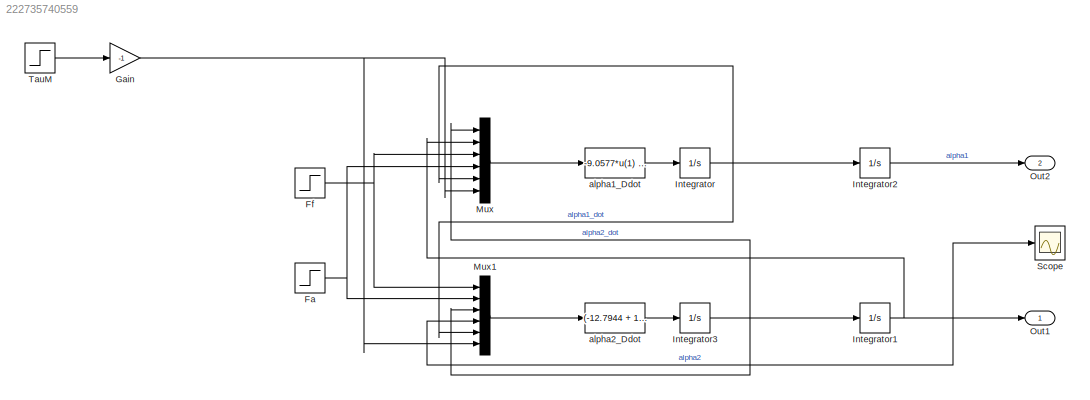
MODEL slx_222735740559
KIND model
CONFIG AbsTol = auto
CONFIG EnableMultiTasking = off
CONFIG FixedStep = auto
CONFIG MaxStep = auto
CONFIG MinStep = auto
CONFIG RelTol = 1e-3
CONFIG SampleTimeConstraint = Unconstrained
CONFIG SolverName = VariableStepAuto
CONFIG StartTime = 0.0
CONFIG StopTime = 10.0
BLOCK [Step] Fa
  SampleTime = 0.2
BLOCK [Step] Ff
  SampleTime = 0.2
BLOCK [Gain] Gain
  Gain = -1
BLOCK [Integrator] Integrator
  ContinuousStateAttributes = "alpha1_dot"
  LowerSaturationLimit = 0
  UpperSaturationLimit = pi
BLOCK [Integrator] Integrator1
  ContinuousStateAttributes = "alpha2"
BLOCK [Integrator] Integrator2
  ContinuousStateAttributes = "alpha1"
BLOCK [Integrator] Integrator3
  ContinuousStateAttributes = "alpha2_dot"
  LowerSaturationLimit = -pi/2
  UpperSaturationLimit = pi/2
BLOCK [Mux] Mux
  DisplayOption = bar
  Inputs = 6
BLOCK [Mux] Mux1
  DisplayOption = bar
  Inputs = 6
BLOCK [Outport] Out1
  SignalName = Alpha2
BLOCK [Outport] Out2
  Port = 2
  SignalName = Alpha1
BLOCK [Scope] Scope
  Floating = off
  NumInputPorts = 1
  ScopeSpecificationString = Simulink.scopes.TimeScopeBlockCfg('CurrentConfiguration', extmgr.ConfigurationSet(extmgr.Configuration('Core','General UI',true),extmgr.Configuration('Core','Source UI',true),extmgr.Configuration('Sources','WiredSimulink',true,'SampleTime','0.1'),extmgr.Configuration('Visuals','Time Domain',true,'SerializedDisplays',{struct('MinYLimReal','-50','MaxYLimReal','50','YLabelReal','','MinYLimMag','0.000...<+1828ch>
BLOCK [Step] TauM
  SampleTime = 0.2
BLOCK [Fcn] alpha1_Ddot
  Expr = -9.0577*u(1) + 9.0577*u(2)*u(1)*u(1) - 192.3077*(u(3)+u(4))*u(5) + 192.3077*u(4)*u(1) + 192.3077*u(6)
BLOCK [Fcn] alpha2_Ddot
  Expr = (-12.7944 + 13.4268*u(1) + 11.944*u(2))*u(3) - 0.6324*u(4)*u(3)*u(3) + 1.4824*u(5) + 12.1955*u(4) - 14.9091*u(6)
NET Fa:1 -> Mux1:2, Mux:4
NET Ff:1 -> Mux1:1, Mux:3
NET Gain:1 -> Mux1:6, Mux:6
NET Integrator1:1 -> Mux1:4, Mux:2, Out1:1, Scope:1
LINE Integrator2:1 -> Out2:1
NET Integrator3:1 -> Integrator1:1, Mux1:3, Mux:1
NET Integrator:1 -> Integrator2:1, Mux1:5, Mux:5
LINE Mux1:1 -> alpha2_Ddot:1
LINE Mux:1 -> alpha1_Ddot:1
LINE TauM:1 -> Gain:1
LINE alpha1_Ddot:1 -> Integrator:1
LINE alpha2_Ddot:1 -> Integrator3:1
note: NET lines group one-source signal fan-out (src -> all destinations, sorted); 1:1 wires keep LINE
